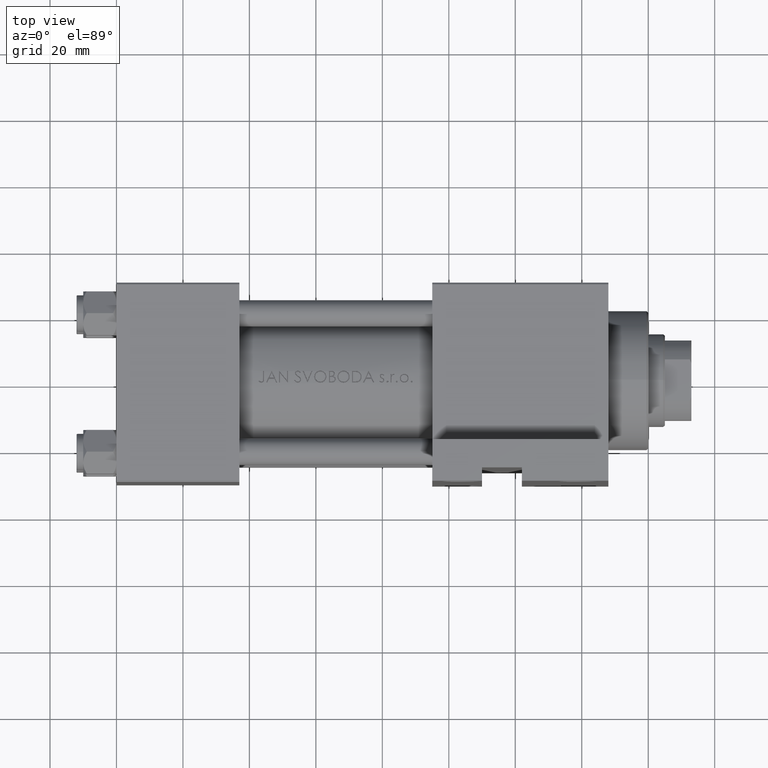
[diagram: clean part render]
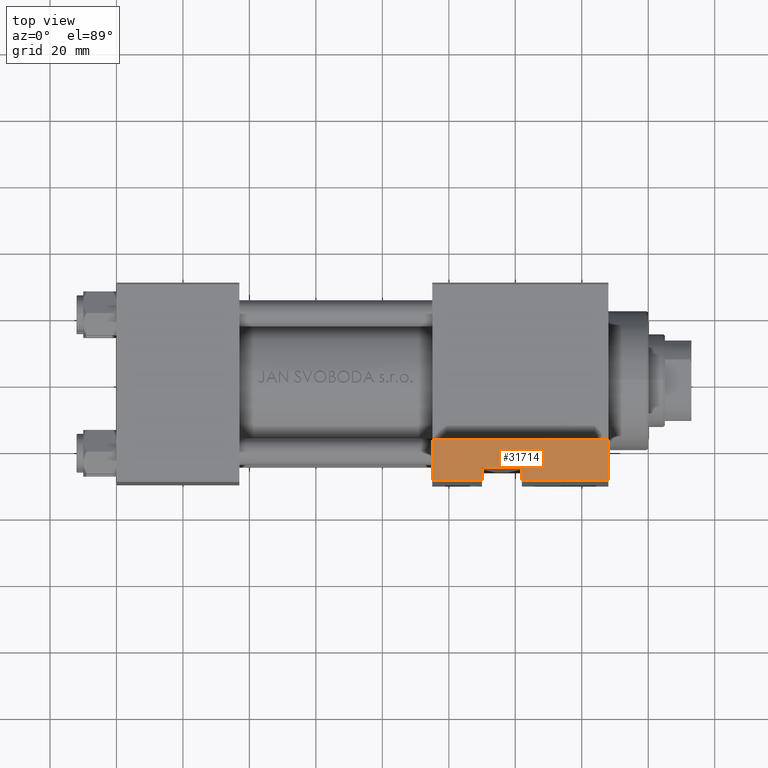
[diagram: same view with one face highlighted and labeled with its STEP entity id]
A machine part, top view. The second image highlights one B-rep face of the part: STEP entity #31714.
In plain terms, the highlighted planar face has unit normal (0, 0, 1).
Its self-contained STEP definition (entity closure, byte-faithful):
#327 = CARTESIAN_POINT ( 'NONE',  ( 94.99999999999998579, -51.50000000000000711, -29.99999999999999645 ) ) ;
#564 = CARTESIAN_POINT ( 'NONE',  ( 148.0000000000000000, -51.50000000000000711, -17.49999999999999645 ) ) ;
#1985 = EDGE_LOOP ( 'NONE', ( #21451, #28745, #21955, #18745, #18608, #37179, #24685, #23242 ) ) ;
#2217 = VERTEX_POINT ( 'NONE', #30563 ) ;
#3742 = VERTEX_POINT ( 'NONE', #3763 ) ;
#3763 = CARTESIAN_POINT ( 'NONE',  ( 121.9999999999999858, -51.50000000000000711, -25.99999999999999645 ) ) ;
#4574 = CARTESIAN_POINT ( 'NONE',  ( 94.99999999999998579, -51.50000000000000711, -17.49999999999999645 ) ) ;
#5052 = EDGE_CURVE ( 'NONE', #3742, #2217, #42881, .T. ) ;
#6718 = DIRECTION ( 'NONE',  ( 0.000000000000000000, 0.000000000000000000, -1.000000000000000000 ) ) ;
#7019 = DIRECTION ( 'NONE',  ( -1.000000000000000000, -0.000000000000000000, -0.000000000000000000 ) ) ;
#7092 = EDGE_CURVE ( 'NONE', #2217, #37035, #27246, .T. ) ;
#7453 = LINE ( 'NONE', #327, #30554 ) ;
#8005 = EDGE_CURVE ( 'NONE', #43258, #35102, #24500, .T. ) ;
#9075 = LINE ( 'NONE', #9308, #25080 ) ;
#9088 = CARTESIAN_POINT ( 'NONE',  ( 109.9999999999999858, -51.49999999999999289, -25.99999999999999645 ) ) ;
#9308 = CARTESIAN_POINT ( 'NONE',  ( 121.9999999999999858, -51.49999999999999289, -25.99999999999999645 ) ) ;
#9895 = VECTOR ( 'NONE', #24162, 1000.000000000000000 ) ;
#10555 = CARTESIAN_POINT ( 'NONE',  ( 94.99999999999998579, -51.50000000000000711, -29.99999999999999645 ) ) ;
#10772 = DIRECTION ( 'NONE',  ( -0.000000000000000000, -0.000000000000000000, -1.000000000000000000 ) ) ;
#11811 = DIRECTION ( 'NONE',  ( 0.000000000000000000, 0.000000000000000000, -1.000000000000000000 ) ) ;
#13571 = DIRECTION ( 'NONE',  ( 0.000000000000000000, -1.000000000000000000, 0.000000000000000000 ) ) ;
#15241 = CARTESIAN_POINT ( 'NONE',  ( 109.9999999999999858, -51.49999999999999289, -29.99999999999999645 ) ) ;
#16372 = LINE ( 'NONE', #4574, #31977 ) ;
#16522 = VECTOR ( 'NONE', #11811, 1000.000000000000000 ) ;
#18608 = ORIENTED_EDGE ( 'NONE', *, *, #8005, .T. ) ;
#18745 = ORIENTED_EDGE ( 'NONE', *, *, #34637, .T. ) ;
#19778 = VERTEX_POINT ( 'NONE', #564 ) ;
#21157 = EDGE_CURVE ( 'NONE', #3742, #23911, #9075, .T. ) ;
#21451 = ORIENTED_EDGE ( 'NONE', *, *, #21157, .T. ) ;
#21714 = DIRECTION ( 'NONE',  ( 0.000000000000000000, -0.000000000000000000, -1.000000000000000000 ) ) ;
#21955 = ORIENTED_EDGE ( 'NONE', *, *, #43273, .F. ) ;
#23242 = ORIENTED_EDGE ( 'NONE', *, *, #5052, .F. ) ;
#23911 = VERTEX_POINT ( 'NONE', #28611 ) ;
#24162 = DIRECTION ( 'NONE',  ( -1.000000000000000000, -0.000000000000000000, -0.000000000000000000 ) ) ;
#24500 = LINE ( 'NONE', #43706, #29673 ) ;
#24685 = ORIENTED_EDGE ( 'NONE', *, *, #7092, .F. ) ;
#25080 = VECTOR ( 'NONE', #10772, 1000.000000000000000 ) ;
#26029 = VECTOR ( 'NONE', #7019, 1000.000000000000000 ) ;
#26044 = LINE ( 'NONE', #40811, #26029 ) ;
#26411 = LINE ( 'NONE', #41664, #16522 ) ;
#27246 = LINE ( 'NONE', #34874, #41886 ) ;
#28395 = PLANE ( 'NONE',  #29002 ) ;
#28611 = CARTESIAN_POINT ( 'NONE',  ( 121.9999999999999858, -51.49999999999999289, -29.99999999999999645 ) ) ;
#28745 = ORIENTED_EDGE ( 'NONE', *, *, #44462, .F. ) ;
#29002 = AXIS2_PLACEMENT_3D ( 'NONE', #43405, #13571, #21714 ) ;
#29673 = VECTOR ( 'NONE', #6718, 1000.000000000000000 ) ;
#30554 = VECTOR ( 'NONE', #41487, 1000.000000000000000 ) ;
#30563 = CARTESIAN_POINT ( 'NONE',  ( 109.9999999999999858, -51.49999999999999289, -25.99999999999999645 ) ) ;
#31425 = EDGE_CURVE ( 'NONE', #37035, #35102, #7453, .T. ) ;
#31714 = ADVANCED_FACE ( 'NONE', ( #32321 ), #28395, .T. ) ;
#31977 = VECTOR ( 'NONE', #35133, 1000.000000000000000 ) ;
#32321 = FACE_OUTER_BOUND ( 'NONE', #1985, .T. ) ;
#34637 = EDGE_CURVE ( 'NONE', #19778, #43258, #16372, .T. ) ;
#34874 = CARTESIAN_POINT ( 'NONE',  ( 109.9999999999999858, -51.49999999999999289, -25.99999999999999645 ) ) ;
#35102 = VERTEX_POINT ( 'NONE', #10555 ) ;
#35133 = DIRECTION ( 'NONE',  ( -1.000000000000000000, -0.000000000000000000, -0.000000000000000000 ) ) ;
#36929 = VERTEX_POINT ( 'NONE', #44150 ) ;
#37035 = VERTEX_POINT ( 'NONE', #15241 ) ;
#37179 = ORIENTED_EDGE ( 'NONE', *, *, #31425, .F. ) ;
#37237 = CARTESIAN_POINT ( 'NONE',  ( 94.99999999999998579, -51.50000000000000711, -17.49999999999999645 ) ) ;
#40811 = CARTESIAN_POINT ( 'NONE',  ( 94.99999999999998579, -51.50000000000000711, -29.99999999999999645 ) ) ;
#41487 = DIRECTION ( 'NONE',  ( -1.000000000000000000, -0.000000000000000000, -0.000000000000000000 ) ) ;
#41664 = CARTESIAN_POINT ( 'NONE',  ( 148.0000000000000000, -51.50000000000000711, -17.49999999999999645 ) ) ;
#41886 = VECTOR ( 'NONE', #42739, 1000.000000000000000 ) ;
#42739 = DIRECTION ( 'NONE',  ( -0.000000000000000000, -0.000000000000000000, -1.000000000000000000 ) ) ;
#42881 = LINE ( 'NONE', #9088, #9895 ) ;
#43258 = VERTEX_POINT ( 'NONE', #37237 ) ;
#43273 = EDGE_CURVE ( 'NONE', #19778, #36929, #26411, .T. ) ;
#43405 = CARTESIAN_POINT ( 'NONE',  ( 94.99999999999998579, -51.50000000000000711, -17.49999999999999645 ) ) ;
#43706 = CARTESIAN_POINT ( 'NONE',  ( 94.99999999999998579, -51.50000000000000711, -17.49999999999999645 ) ) ;
#44150 = CARTESIAN_POINT ( 'NONE',  ( 148.0000000000000000, -51.50000000000000711, -29.99999999999999645 ) ) ;
#44462 = EDGE_CURVE ( 'NONE', #36929, #23911, #26044, .T. ) ;